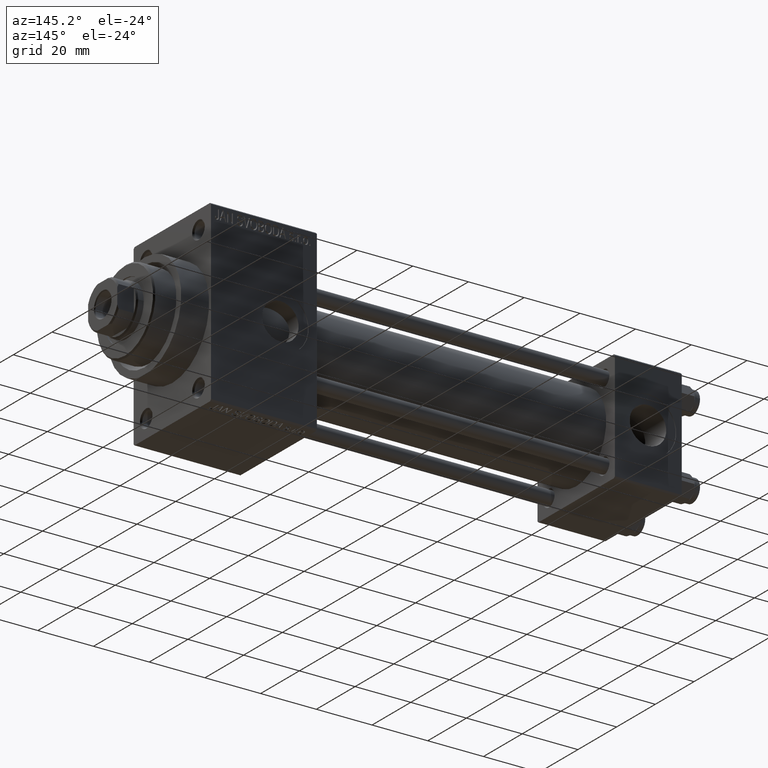
[diagram: clean part render]
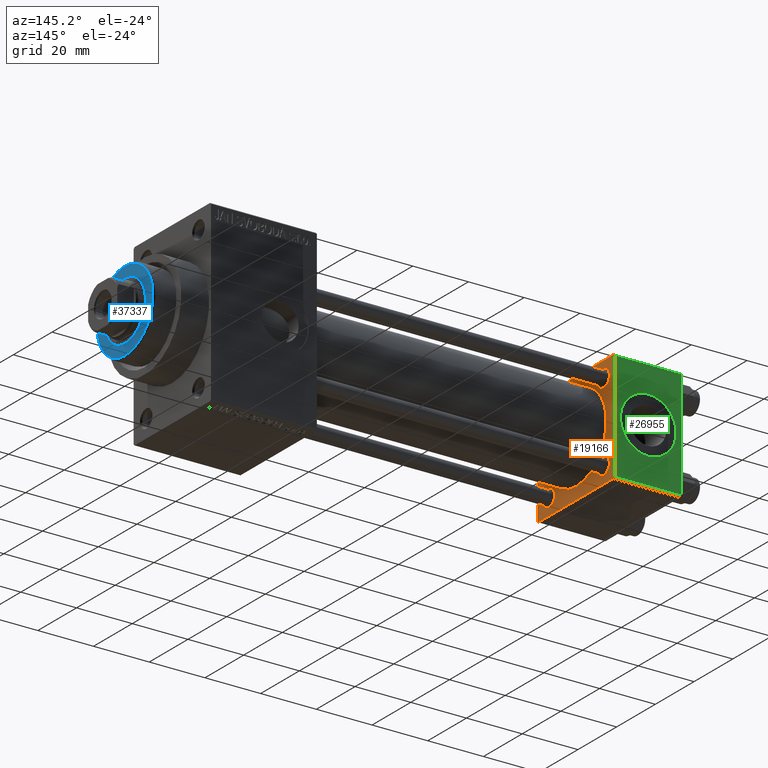
[diagram: same view with three faces highlighted in distinct colors, each labeled with its STEP entity id]
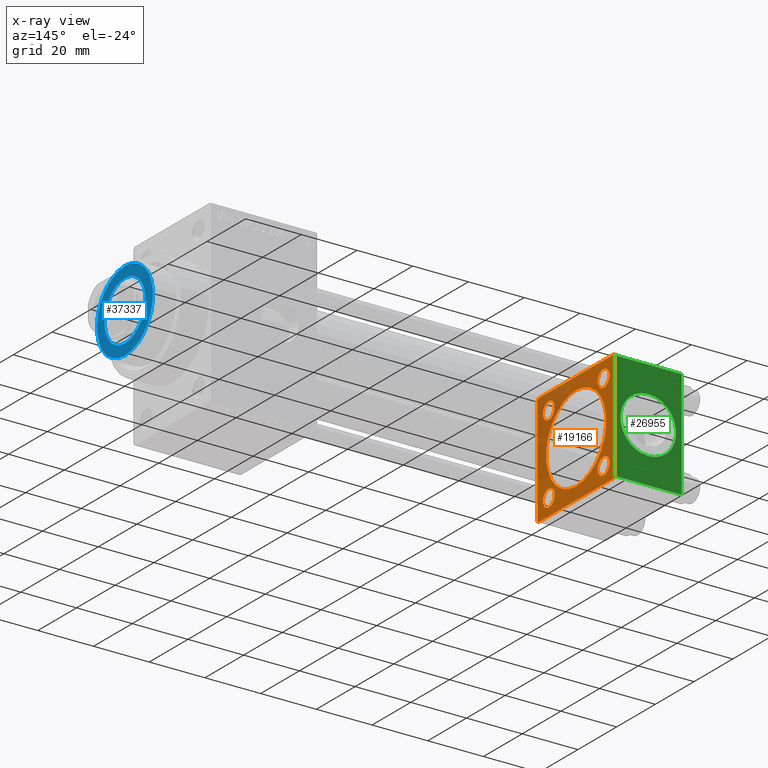
[diagram: x-ray of the same camera — body ghosted, the three highlighted faces saturated]
A machine part, auxiliary view with three faces highlighted in distinct colors.
The next image is the same camera in x-ray (body ghosted, the three faces saturated) — at least one of them is partly hidden behind the body in this view.
Their STEP definitions:

[orange] entity #19166 — the highlighted planar face has unit normal (-1, 0, 0).
#999 = LINE ( 'NONE', #33624, #10772 ) ;
#1257 = CARTESIAN_POINT ( 'NONE',  ( 24.00000000000000000, 14.14999999999999858, 11.15000000000002700 ) ) ;
#1259 = LINE ( 'NONE', #29834, #5958 ) ;
#1773 = CARTESIAN_POINT ( 'NONE',  ( 24.00000000000000000, 20.00000000000000000, -19.50000000000002132 ) ) ;
#1879 = CARTESIAN_POINT ( 'NONE',  ( 24.00000000000000000, -19.49999999999999289, 19.99999999999998934 ) ) ;
#2064 = AXIS2_PLACEMENT_3D ( 'NONE', #17371, #31868, #21160 ) ;
#2410 = DIRECTION ( 'NONE',  ( 0.000000000000000000, 0.000000000000000000, 1.000000000000000000 ) ) ;
#2747 = CARTESIAN_POINT ( 'NONE',  ( 24.00000000000000000, -20.00000000000000355, 19.49999999999998224 ) ) ;
#2823 = ORIENTED_EDGE ( 'NONE', *, *, #44175, .T. ) ;
#3012 = EDGE_LOOP ( 'NONE', ( #8167, #8739 ) ) ;
#3019 = CIRCLE ( 'NONE', #28892, 2.999999999999976463 ) ;
#3413 = CARTESIAN_POINT ( 'NONE',  ( 24.00000000000000000, -14.14999999999999503, -17.14999999999998082 ) ) ;
#3851 = AXIS2_PLACEMENT_3D ( 'NONE', #19194, #18724, #40136 ) ;
#4253 = VECTOR ( 'NONE', #17496, 1000.000000000000000 ) ;
#4403 = VERTEX_POINT ( 'NONE', #7358 ) ;
#5043 = ORIENTED_EDGE ( 'NONE', *, *, #20058, .T. ) ;
#5066 = DIRECTION ( 'NONE',  ( 0.000000000000000000, 8.673617379884036705E-17, -1.000000000000000000 ) ) ;
#5958 = VECTOR ( 'NONE', #5066, 1000.000000000000000 ) ;
#5968 = CARTESIAN_POINT ( 'NONE',  ( 24.00000000000000000, 0.000000000000000000, 0.000000000000000000 ) ) ;
#6519 = ORIENTED_EDGE ( 'NONE', *, *, #43115, .T. ) ;
#6621 = CARTESIAN_POINT ( 'NONE',  ( 24.00000000000000000, -20.00000000000000355, 19.49999999999998224 ) ) ;
#7012 = CIRCLE ( 'NONE', #23730, 2.999999999999976463 ) ;
#7210 = ORIENTED_EDGE ( 'NONE', *, *, #34206, .T. ) ;
#7358 = CARTESIAN_POINT ( 'NONE',  ( 24.00000000000000000, 14.14999999999999858, -17.14999999999997726 ) ) ;
#8167 = ORIENTED_EDGE ( 'NONE', *, *, #44487, .T. ) ;
#8327 = EDGE_CURVE ( 'NONE', #38633, #15785, #7012, .T. ) ;
#8641 = FACE_BOUND ( 'NONE', #14241, .T. ) ;
#8739 = ORIENTED_EDGE ( 'NONE', *, *, #40809, .T. ) ;
#9333 = PLANE ( 'NONE',  #27050 ) ;
#9596 = VERTEX_POINT ( 'NONE', #1879 ) ;
#9681 = CARTESIAN_POINT ( 'NONE',  ( 23.99999999999999289, -2.602085213965210642E-15, 15.50000000000000000 ) ) ;
#9946 = CIRCLE ( 'NONE', #28164, 2.999999999999976463 ) ;
#10671 = VECTOR ( 'NONE', #31553, 1000.000000000000114 ) ;
#10772 = VECTOR ( 'NONE', #15071, 999.9999999999998863 ) ;
#11029 = VERTEX_POINT ( 'NONE', #43958 ) ;
#11170 = CARTESIAN_POINT ( 'NONE',  ( 24.00000000000000000, 14.14999999999999858, -11.15000000000002700 ) ) ;
#12782 = ORIENTED_EDGE ( 'NONE', *, *, #34593, .F. ) ;
#12938 = VERTEX_POINT ( 'NONE', #15491 ) ;
#12942 = DIRECTION ( 'NONE',  ( -1.000000000000000000, -0.000000000000000000, -0.000000000000000000 ) ) ;
#13380 = DIRECTION ( 'NONE',  ( -1.000000000000000000, -0.000000000000000000, -0.000000000000000000 ) ) ;
#13603 = CARTESIAN_POINT ( 'NONE',  ( 24.00000000000000000, 14.14999999999999858, 17.14999999999997726 ) ) ;
#13764 = CARTESIAN_POINT ( 'NONE',  ( 24.00000000000000000, -14.14999999999999503, -11.15000000000002878 ) ) ;
#14241 = EDGE_LOOP ( 'NONE', ( #2823, #29280 ) ) ;
#14756 = VERTEX_POINT ( 'NONE', #22524 ) ;
#15071 = DIRECTION ( 'NONE',  ( 0.000000000000000000, -0.7071067811865425767, 0.7071067811865525687 ) ) ;
#15491 = CARTESIAN_POINT ( 'NONE',  ( 24.00000000000000000, 19.50000000000000000, 20.00000000000000000 ) ) ;
#15785 = VERTEX_POINT ( 'NONE', #3413 ) ;
#16049 = CIRCLE ( 'NONE', #3851, 2.999999999999976463 ) ;
#16775 = DIRECTION ( 'NONE',  ( -0.000000000000000000, 0.7071067811865524577, 0.7071067811865426878 ) ) ;
#17242 = LINE ( 'NONE', #1773, #32751 ) ;
#17323 = CIRCLE ( 'NONE', #23404, 2.999999999999976463 ) ;
#17371 = CARTESIAN_POINT ( 'NONE',  ( 23.99999999999999289, -2.602085213965210642E-15, 0.000000000000000000 ) ) ;
#17496 = DIRECTION ( 'NONE',  ( 0.000000000000000000, -1.000000000000000000, -2.602085213965210149E-16 ) ) ;
#17513 = ORIENTED_EDGE ( 'NONE', *, *, #17585, .T. ) ;
#17585 = EDGE_CURVE ( 'NONE', #26657, #14756, #24454, .T. ) ;
#18227 = ORIENTED_EDGE ( 'NONE', *, *, #34914, .T. ) ;
#18288 = CIRCLE ( 'NONE', #34992, 15.50000000000000000 ) ;
#18724 = DIRECTION ( 'NONE',  ( -1.000000000000000000, -0.000000000000000000, -0.000000000000000000 ) ) ;
#19077 = AXIS2_PLACEMENT_3D ( 'NONE', #33652, #19370, #40560 ) ;
#19166 = ADVANCED_FACE ( 'NONE', ( #8641, #37683, #38375, #45953, #23369, #41926 ), #9333, .F. ) ;
#19194 = CARTESIAN_POINT ( 'NONE',  ( 24.00000000000000000, 14.14999999999999858, -14.15000000000000036 ) ) ;
#19370 = DIRECTION ( 'NONE',  ( -1.000000000000000000, -0.000000000000000000, -0.000000000000000000 ) ) ;
#20058 = EDGE_CURVE ( 'NONE', #12938, #9596, #20132, .T. ) ;
#20132 = LINE ( 'NONE', #35823, #4253 ) ;
#20389 = DIRECTION ( 'NONE',  ( 0.000000000000000000, 0.000000000000000000, 1.000000000000000000 ) ) ;
#20411 = VECTOR ( 'NONE', #36584, 1000.000000000000000 ) ;
#20493 = DIRECTION ( 'NONE',  ( -0.000000000000000000, 0.000000000000000000, 1.000000000000000000 ) ) ;
#20877 = CARTESIAN_POINT ( 'NONE',  ( 24.00000000000000000, -19.50000000000000711, -20.00000000000000000 ) ) ;
#21160 = DIRECTION ( 'NONE',  ( 0.000000000000000000, 0.000000000000000000, 1.000000000000000000 ) ) ;
#21271 = CARTESIAN_POINT ( 'NONE',  ( 24.00000000000000000, 20.00000000000000000, -20.00000000000000711 ) ) ;
#22524 = CARTESIAN_POINT ( 'NONE',  ( 24.00000000000000000, -19.50000000000000711, -20.00000000000000000 ) ) ;
#23369 = FACE_BOUND ( 'NONE', #34386, .T. ) ;
#23404 = AXIS2_PLACEMENT_3D ( 'NONE', #23844, #13380, #2410 ) ;
#23413 = CARTESIAN_POINT ( 'NONE',  ( 24.00000000000000000, 14.14999999999999858, -14.15000000000000036 ) ) ;
#23416 = ORIENTED_EDGE ( 'NONE', *, *, #30332, .F. ) ;
#23730 = AXIS2_PLACEMENT_3D ( 'NONE', #42614, #24527, #41921 ) ;
#23844 = CARTESIAN_POINT ( 'NONE',  ( 24.00000000000000000, 14.14999999999999858, 14.15000000000000036 ) ) ;
#24062 = DIRECTION ( 'NONE',  ( -1.000000000000000000, 0.000000000000000000, -0.000000000000000000 ) ) ;
#24221 = DIRECTION ( 'NONE',  ( 0.000000000000000000, 0.7071067811865401342, -0.7071067811865549002 ) ) ;
#24331 = CIRCLE ( 'NONE', #19077, 2.999999999999976463 ) ;
#24446 = EDGE_CURVE ( 'NONE', #36124, #44134, #25669, .T. ) ;
#24454 = LINE ( 'NONE', #20877, #36106 ) ;
#24527 = DIRECTION ( 'NONE',  ( -1.000000000000000000, -0.000000000000000000, -0.000000000000000000 ) ) ;
#24926 = ORIENTED_EDGE ( 'NONE', *, *, #26470, .F. ) ;
#24951 = DIRECTION ( 'NONE',  ( -1.000000000000000000, -0.000000000000000000, -0.000000000000000000 ) ) ;
#25132 = LINE ( 'NONE', #2747, #10671 ) ;
#25555 = CARTESIAN_POINT ( 'NONE',  ( 24.00000000000000000, 19.50000000000000711, -20.00000000000000711 ) ) ;
#25669 = CIRCLE ( 'NONE', #46955, 2.999999999999976463 ) ;
#26470 = EDGE_CURVE ( 'NONE', #45639, #38892, #32453, .T. ) ;
#26610 = DIRECTION ( 'NONE',  ( 1.000000000000000000, 0.000000000000000000, 0.000000000000000000 ) ) ;
#26657 = VERTEX_POINT ( 'NONE', #45414 ) ;
#27050 = AXIS2_PLACEMENT_3D ( 'NONE', #5968, #24062, #20493 ) ;
#28159 = LINE ( 'NONE', #21271, #28616 ) ;
#28164 = AXIS2_PLACEMENT_3D ( 'NONE', #23413, #12942, #31009 ) ;
#28616 = VECTOR ( 'NONE', #42233, 1000.000000000000000 ) ;
#28892 = AXIS2_PLACEMENT_3D ( 'NONE', #43034, #24951, #36393 ) ;
#29061 = CARTESIAN_POINT ( 'NONE',  ( 24.00000000000000000, -14.14999999999999503, 17.14999999999998082 ) ) ;
#29280 = ORIENTED_EDGE ( 'NONE', *, *, #8327, .T. ) ;
#29346 = AXIS2_PLACEMENT_3D ( 'NONE', #34345, #30751, #35034 ) ;
#29353 = EDGE_CURVE ( 'NONE', #34392, #32904, #32378, .T. ) ;
#29526 = DIRECTION ( 'NONE',  ( 0.000000000000000000, 0.000000000000000000, 1.000000000000000000 ) ) ;
#29834 = CARTESIAN_POINT ( 'NONE',  ( 24.00000000000000000, -20.00000000000000355, 19.99999999999998934 ) ) ;
#29908 = VERTEX_POINT ( 'NONE', #6621 ) ;
#29964 = VERTEX_POINT ( 'NONE', #11170 ) ;
#30332 = EDGE_CURVE ( 'NONE', #37904, #14756, #28159, .T. ) ;
#30344 = VERTEX_POINT ( 'NONE', #31978 ) ;
#30401 = CARTESIAN_POINT ( 'NONE',  ( 23.99999999999999289, -2.602085213965210642E-15, 0.000000000000000000 ) ) ;
#30678 = ORIENTED_EDGE ( 'NONE', *, *, #39840, .F. ) ;
#30751 = DIRECTION ( 'NONE',  ( -1.000000000000000000, -0.000000000000000000, -0.000000000000000000 ) ) ;
#31009 = DIRECTION ( 'NONE',  ( 0.000000000000000000, 0.000000000000000000, 1.000000000000000000 ) ) ;
#31553 = DIRECTION ( 'NONE',  ( -0.000000000000000000, -0.7071067811865500152, -0.7071067811865451302 ) ) ;
#31868 = DIRECTION ( 'NONE',  ( 1.000000000000000000, 0.000000000000000000, 0.000000000000000000 ) ) ;
#31978 = CARTESIAN_POINT ( 'NONE',  ( 24.00000000000000000, 20.00000000000000000, -19.50000000000002132 ) ) ;
#32378 = CIRCLE ( 'NONE', #29346, 2.999999999999976463 ) ;
#32401 = ORIENTED_EDGE ( 'NONE', *, *, #24446, .T. ) ;
#32453 = CIRCLE ( 'NONE', #2064, 15.50000000000000000 ) ;
#32751 = VECTOR ( 'NONE', #16775, 1000.000000000000000 ) ;
#32904 = VERTEX_POINT ( 'NONE', #35060 ) ;
#33243 = CARTESIAN_POINT ( 'NONE',  ( 24.00000000000000000, 20.00000000000000000, 20.00000000000000000 ) ) ;
#33624 = CARTESIAN_POINT ( 'NONE',  ( 24.00000000000000000, 19.50000000000000000, 20.00000000000000000 ) ) ;
#33652 = CARTESIAN_POINT ( 'NONE',  ( 24.00000000000000000, -14.14999999999999503, -14.15000000000000391 ) ) ;
#34206 = EDGE_CURVE ( 'NONE', #44134, #36124, #17323, .T. ) ;
#34345 = CARTESIAN_POINT ( 'NONE',  ( 24.00000000000000000, -14.14999999999999503, 14.15000000000000391 ) ) ;
#34386 = EDGE_LOOP ( 'NONE', ( #24926, #30678 ) ) ;
#34392 = VERTEX_POINT ( 'NONE', #29061 ) ;
#34593 = EDGE_CURVE ( 'NONE', #11029, #30344, #37063, .T. ) ;
#34914 = EDGE_CURVE ( 'NONE', #29908, #26657, #1259, .T. ) ;
#34992 = AXIS2_PLACEMENT_3D ( 'NONE', #30401, #26610, #20389 ) ;
#35034 = DIRECTION ( 'NONE',  ( 0.000000000000000000, 0.000000000000000000, 1.000000000000000000 ) ) ;
#35060 = CARTESIAN_POINT ( 'NONE',  ( 24.00000000000000000, -14.14999999999999503, 11.15000000000002878 ) ) ;
#35823 = CARTESIAN_POINT ( 'NONE',  ( 24.00000000000000000, 20.00000000000000000, 20.00000000000000000 ) ) ;
#36106 = VECTOR ( 'NONE', #24221, 1000.000000000000000 ) ;
#36124 = VERTEX_POINT ( 'NONE', #13603 ) ;
#36393 = DIRECTION ( 'NONE',  ( 0.000000000000000000, 0.000000000000000000, 1.000000000000000000 ) ) ;
#36584 = DIRECTION ( 'NONE',  ( 0.000000000000000000, 0.000000000000000000, -1.000000000000000000 ) ) ;
#36930 = DIRECTION ( 'NONE',  ( -1.000000000000000000, -0.000000000000000000, -0.000000000000000000 ) ) ;
#37063 = LINE ( 'NONE', #33243, #20411 ) ;
#37683 = FACE_BOUND ( 'NONE', #3012, .T. ) ;
#37771 = EDGE_LOOP ( 'NONE', ( #23416, #6519, #12782, #45149, #5043, #45775, #18227, #17513 ) ) ;
#37904 = VERTEX_POINT ( 'NONE', #25555 ) ;
#38375 = FACE_BOUND ( 'NONE', #45501, .T. ) ;
#38633 = VERTEX_POINT ( 'NONE', #13764 ) ;
#38892 = VERTEX_POINT ( 'NONE', #39169 ) ;
#39169 = CARTESIAN_POINT ( 'NONE',  ( 23.99999999999999289, -7.038826752868131828E-16, -15.50000000000000000 ) ) ;
#39840 = EDGE_CURVE ( 'NONE', #38892, #45639, #18288, .T. ) ;
#39935 = EDGE_CURVE ( 'NONE', #9596, #29908, #25132, .T. ) ;
#39978 = ORIENTED_EDGE ( 'NONE', *, *, #29353, .T. ) ;
#40010 = CARTESIAN_POINT ( 'NONE',  ( 24.00000000000000000, 14.14999999999999858, 14.15000000000000036 ) ) ;
#40136 = DIRECTION ( 'NONE',  ( 0.000000000000000000, 0.000000000000000000, 1.000000000000000000 ) ) ;
#40560 = DIRECTION ( 'NONE',  ( 0.000000000000000000, 0.000000000000000000, 1.000000000000000000 ) ) ;
#40809 = EDGE_CURVE ( 'NONE', #29964, #4403, #16049, .T. ) ;
#41921 = DIRECTION ( 'NONE',  ( 0.000000000000000000, 0.000000000000000000, 1.000000000000000000 ) ) ;
#41926 = FACE_OUTER_BOUND ( 'NONE', #37771, .T. ) ;
#42233 = DIRECTION ( 'NONE',  ( 0.000000000000000000, -1.000000000000000000, 1.734723475976807094E-16 ) ) ;
#42467 = EDGE_CURVE ( 'NONE', #32904, #34392, #3019, .T. ) ;
#42614 = CARTESIAN_POINT ( 'NONE',  ( 24.00000000000000000, -14.14999999999999503, -14.15000000000000391 ) ) ;
#42848 = EDGE_LOOP ( 'NONE', ( #7210, #32401 ) ) ;
#43034 = CARTESIAN_POINT ( 'NONE',  ( 24.00000000000000000, -14.14999999999999503, 14.15000000000000391 ) ) ;
#43115 = EDGE_CURVE ( 'NONE', #37904, #30344, #17242, .T. ) ;
#43958 = CARTESIAN_POINT ( 'NONE',  ( 24.00000000000000000, 20.00000000000000000, 19.49999999999999289 ) ) ;
#44134 = VERTEX_POINT ( 'NONE', #1257 ) ;
#44175 = EDGE_CURVE ( 'NONE', #15785, #38633, #24331, .T. ) ;
#44487 = EDGE_CURVE ( 'NONE', #4403, #29964, #9946, .T. ) ;
#44732 = ORIENTED_EDGE ( 'NONE', *, *, #42467, .T. ) ;
#45149 = ORIENTED_EDGE ( 'NONE', *, *, #46757, .T. ) ;
#45414 = CARTESIAN_POINT ( 'NONE',  ( 24.00000000000000000, -20.00000000000000000, -19.49999999999999645 ) ) ;
#45501 = EDGE_LOOP ( 'NONE', ( #44732, #39978 ) ) ;
#45639 = VERTEX_POINT ( 'NONE', #9681 ) ;
#45775 = ORIENTED_EDGE ( 'NONE', *, *, #39935, .T. ) ;
#45953 = FACE_BOUND ( 'NONE', #42848, .T. ) ;
#46757 = EDGE_CURVE ( 'NONE', #11029, #12938, #999, .T. ) ;
#46955 = AXIS2_PLACEMENT_3D ( 'NONE', #40010, #36930, #29526 ) ;

[blue] entity #37337 — the highlighted planar face has unit normal (1, -0, -0).
#132 = CARTESIAN_POINT ( 'NONE',  ( 10.50000000000000000, 0.000000000000000000, 50.25999999999999801 ) ) ;
#2239 = CARTESIAN_POINT ( 'NONE',  ( 0.000000000000000000, 0.000000000000000000, 50.25999999999999801 ) ) ;
#4724 = DIRECTION ( 'NONE',  ( 0.000000000000000000, 0.000000000000000000, 1.000000000000000000 ) ) ;
#6628 = EDGE_CURVE ( 'NONE', #42927, #29795, #13847, .T. ) ;
#7962 = DIRECTION ( 'NONE',  ( 1.000000000000000000, 0.000000000000000000, 0.000000000000000000 ) ) ;
#11414 = PLANE ( 'NONE',  #25793 ) ;
#12941 = CIRCLE ( 'NONE', #35732, 10.50000000000000000 ) ;
#13115 = VERTEX_POINT ( 'NONE', #19851 ) ;
#13484 = DIRECTION ( 'NONE',  ( 0.000000000000000000, 0.000000000000000000, 1.000000000000000000 ) ) ;
#13847 = CIRCLE ( 'NONE', #17611, 10.50000000000000000 ) ;
#14775 = AXIS2_PLACEMENT_3D ( 'NONE', #2239, #38684, #45571 ) ;
#15689 = EDGE_CURVE ( 'NONE', #13115, #19846, #36031, .T. ) ;
#15911 = EDGE_CURVE ( 'NONE', #19846, #13115, #27683, .T. ) ;
#16826 = CARTESIAN_POINT ( 'NONE',  ( 0.000000000000000000, 0.000000000000000000, 50.25999999999999801 ) ) ;
#17611 = AXIS2_PLACEMENT_3D ( 'NONE', #16826, #13484, #45842 ) ;
#19476 = DIRECTION ( 'NONE',  ( 0.000000000000000000, 0.000000000000000000, 1.000000000000000000 ) ) ;
#19678 = ORIENTED_EDGE ( 'NONE', *, *, #42729, .F. ) ;
#19846 = VERTEX_POINT ( 'NONE', #25877 ) ;
#19851 = CARTESIAN_POINT ( 'NONE',  ( -14.49999999999999112, 0.000000000000000000, 50.25999999999999801 ) ) ;
#22581 = DIRECTION ( 'NONE',  ( 1.000000000000000000, 0.000000000000000000, -0.000000000000000000 ) ) ;
#23055 = FACE_OUTER_BOUND ( 'NONE', #46725, .T. ) ;
#24154 = ORIENTED_EDGE ( 'NONE', *, *, #6628, .F. ) ;
#25793 = AXIS2_PLACEMENT_3D ( 'NONE', #44005, #4724, #22581 ) ;
#25877 = CARTESIAN_POINT ( 'NONE',  ( 14.49999999999999112, 1.806354028742345013E-15, 50.25999999999999801 ) ) ;
#26510 = CARTESIAN_POINT ( 'NONE',  ( 0.000000000000000000, 0.000000000000000000, 50.25999999999999801 ) ) ;
#26956 = AXIS2_PLACEMENT_3D ( 'NONE', #26510, #43889, #7962 ) ;
#27583 = CARTESIAN_POINT ( 'NONE',  ( -10.50000000000000000, 1.285879139104720831E-15, 50.25999999999999801 ) ) ;
#27683 = CIRCLE ( 'NONE', #26956, 14.49999999999999112 ) ;
#29795 = VERTEX_POINT ( 'NONE', #27583 ) ;
#30170 = DIRECTION ( 'NONE',  ( 1.000000000000000000, 0.000000000000000000, 0.000000000000000000 ) ) ;
#31544 = ORIENTED_EDGE ( 'NONE', *, *, #15911, .T. ) ;
#35732 = AXIS2_PLACEMENT_3D ( 'NONE', #41374, #19476, #30170 ) ;
#36031 = CIRCLE ( 'NONE', #14775, 14.49999999999999112 ) ;
#37337 = ADVANCED_FACE ( 'NONE', ( #40679, #23055 ), #11414, .T. ) ;
#37684 = EDGE_LOOP ( 'NONE', ( #24154, #19678 ) ) ;
#38684 = DIRECTION ( 'NONE',  ( 0.000000000000000000, 0.000000000000000000, 1.000000000000000000 ) ) ;
#40095 = ORIENTED_EDGE ( 'NONE', *, *, #15689, .T. ) ;
#40679 = FACE_BOUND ( 'NONE', #37684, .T. ) ;
#41374 = CARTESIAN_POINT ( 'NONE',  ( 0.000000000000000000, 0.000000000000000000, 50.25999999999999801 ) ) ;
#42729 = EDGE_CURVE ( 'NONE', #29795, #42927, #12941, .T. ) ;
#42927 = VERTEX_POINT ( 'NONE', #132 ) ;
#43889 = DIRECTION ( 'NONE',  ( 0.000000000000000000, 0.000000000000000000, 1.000000000000000000 ) ) ;
#44005 = CARTESIAN_POINT ( 'NONE',  ( 0.000000000000000000, 0.000000000000000000, 50.25999999999999801 ) ) ;
#45571 = DIRECTION ( 'NONE',  ( 1.000000000000000000, 0.000000000000000000, 0.000000000000000000 ) ) ;
#45842 = DIRECTION ( 'NONE',  ( 1.000000000000000000, 0.000000000000000000, 0.000000000000000000 ) ) ;
#46725 = EDGE_LOOP ( 'NONE', ( #40095, #31544 ) ) ;

[green] entity #26955 — the highlighted planar face has unit normal (0, 1, 0).
#1704 = CIRCLE ( 'NONE', #27523, 10.00000000000000000 ) ;
#2269 = DIRECTION ( 'NONE',  ( -1.000000000000000000, 0.000000000000000000, 0.000000000000000000 ) ) ;
#2575 = LINE ( 'NONE', #35206, #14581 ) ;
#2749 = CARTESIAN_POINT ( 'NONE',  ( 0.000000000000000000, 20.00000000000000000, -19.50000000000002132 ) ) ;
#2959 = ORIENTED_EDGE ( 'NONE', *, *, #7801, .F. ) ;
#7555 = VERTEX_POINT ( 'NONE', #2749 ) ;
#7801 = EDGE_CURVE ( 'NONE', #30905, #37616, #1704, .T. ) ;
#9698 = AXIS2_PLACEMENT_3D ( 'NONE', #28595, #40515, #21948 ) ;
#11029 = VERTEX_POINT ( 'NONE', #43958 ) ;
#11099 = ORIENTED_EDGE ( 'NONE', *, *, #46523, .T. ) ;
#12855 = CIRCLE ( 'NONE', #18936, 10.00000000000000000 ) ;
#14581 = VECTOR ( 'NONE', #24710, 1000.000000000000000 ) ;
#16130 = CARTESIAN_POINT ( 'NONE',  ( 24.00000000000000000, 20.00000000000000000, -19.50000000000002132 ) ) ;
#16545 = CARTESIAN_POINT ( 'NONE',  ( 12.00000000000000000, 20.00000000000000000, 0.000000000000000000 ) ) ;
#16966 = ORIENTED_EDGE ( 'NONE', *, *, #21664, .T. ) ;
#17999 = LINE ( 'NONE', #43220, #22089 ) ;
#18413 = DIRECTION ( 'NONE',  ( 0.000000000000000000, 1.000000000000000000, 0.000000000000000000 ) ) ;
#18936 = AXIS2_PLACEMENT_3D ( 'NONE', #25062, #18413, #32689 ) ;
#19428 = CARTESIAN_POINT ( 'NONE',  ( 12.00000000000000000, 20.00000000000000000, 10.00000000000000000 ) ) ;
#20411 = VECTOR ( 'NONE', #36584, 1000.000000000000000 ) ;
#21664 = EDGE_CURVE ( 'NONE', #30344, #7555, #37792, .T. ) ;
#21948 = DIRECTION ( 'NONE',  ( 0.000000000000000000, -0.000000000000000000, 1.000000000000000000 ) ) ;
#22024 = VERTEX_POINT ( 'NONE', #39818 ) ;
#22089 = VECTOR ( 'NONE', #45848, 1000.000000000000000 ) ;
#22481 = EDGE_LOOP ( 'NONE', ( #41435, #16966, #29219, #11099 ) ) ;
#24363 = DIRECTION ( 'NONE',  ( 0.000000000000000000, 1.000000000000000000, 0.000000000000000000 ) ) ;
#24710 = DIRECTION ( 'NONE',  ( 1.000000000000000000, 0.000000000000000000, 0.000000000000000000 ) ) ;
#25062 = CARTESIAN_POINT ( 'NONE',  ( 12.00000000000000000, 20.00000000000000000, 0.000000000000000000 ) ) ;
#25755 = PLANE ( 'NONE',  #9698 ) ;
#26955 = ADVANCED_FACE ( 'NONE', ( #36478, #36718 ), #25755, .T. ) ;
#27523 = AXIS2_PLACEMENT_3D ( 'NONE', #16545, #24363, #38898 ) ;
#28595 = CARTESIAN_POINT ( 'NONE',  ( 24.00000000000000000, 20.00000000000000000, 20.00000000000000000 ) ) ;
#29219 = ORIENTED_EDGE ( 'NONE', *, *, #39995, .F. ) ;
#30344 = VERTEX_POINT ( 'NONE', #31978 ) ;
#30905 = VERTEX_POINT ( 'NONE', #33484 ) ;
#31978 = CARTESIAN_POINT ( 'NONE',  ( 24.00000000000000000, 20.00000000000000000, -19.50000000000002132 ) ) ;
#32689 = DIRECTION ( 'NONE',  ( 0.000000000000000000, 0.000000000000000000, 1.000000000000000000 ) ) ;
#33243 = CARTESIAN_POINT ( 'NONE',  ( 24.00000000000000000, 20.00000000000000000, 20.00000000000000000 ) ) ;
#33484 = CARTESIAN_POINT ( 'NONE',  ( 12.00000000000000178, 20.00000000000000000, -10.00000000000000000 ) ) ;
#34593 = EDGE_CURVE ( 'NONE', #11029, #30344, #37063, .T. ) ;
#34832 = ORIENTED_EDGE ( 'NONE', *, *, #35982, .F. ) ;
#35206 = CARTESIAN_POINT ( 'NONE',  ( 24.00000000000000000, 20.00000000000000000, 19.49999999999999289 ) ) ;
#35982 = EDGE_CURVE ( 'NONE', #37616, #30905, #12855, .T. ) ;
#36478 = FACE_BOUND ( 'NONE', #45715, .T. ) ;
#36584 = DIRECTION ( 'NONE',  ( 0.000000000000000000, 0.000000000000000000, -1.000000000000000000 ) ) ;
#36718 = FACE_OUTER_BOUND ( 'NONE', #22481, .T. ) ;
#37063 = LINE ( 'NONE', #33243, #20411 ) ;
#37616 = VERTEX_POINT ( 'NONE', #19428 ) ;
#37777 = VECTOR ( 'NONE', #2269, 1000.000000000000000 ) ;
#37792 = LINE ( 'NONE', #16130, #37777 ) ;
#38898 = DIRECTION ( 'NONE',  ( 0.000000000000000000, 0.000000000000000000, 1.000000000000000000 ) ) ;
#39818 = CARTESIAN_POINT ( 'NONE',  ( 0.000000000000000000, 20.00000000000000000, 19.49999999999999289 ) ) ;
#39995 = EDGE_CURVE ( 'NONE', #22024, #7555, #17999, .T. ) ;
#40515 = DIRECTION ( 'NONE',  ( -0.000000000000000000, 1.000000000000000000, 0.000000000000000000 ) ) ;
#41435 = ORIENTED_EDGE ( 'NONE', *, *, #34593, .T. ) ;
#43220 = CARTESIAN_POINT ( 'NONE',  ( 0.000000000000000000, 20.00000000000000000, 20.00000000000000000 ) ) ;
#43958 = CARTESIAN_POINT ( 'NONE',  ( 24.00000000000000000, 20.00000000000000000, 19.49999999999999289 ) ) ;
#45715 = EDGE_LOOP ( 'NONE', ( #34832, #2959 ) ) ;
#45848 = DIRECTION ( 'NONE',  ( 0.000000000000000000, 0.000000000000000000, -1.000000000000000000 ) ) ;
#46523 = EDGE_CURVE ( 'NONE', #22024, #11029, #2575, .T. ) ;